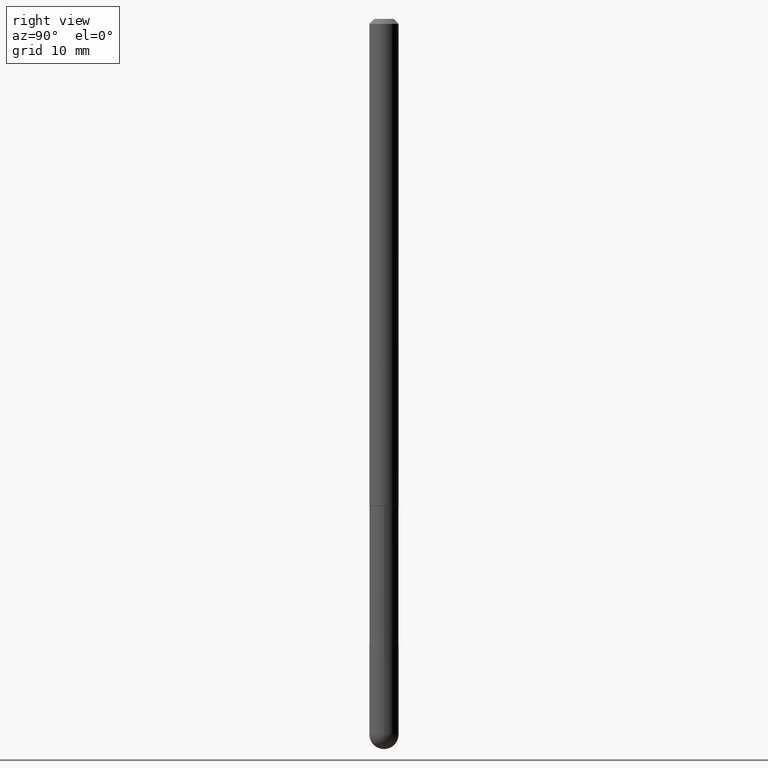
[diagram: clean part render]
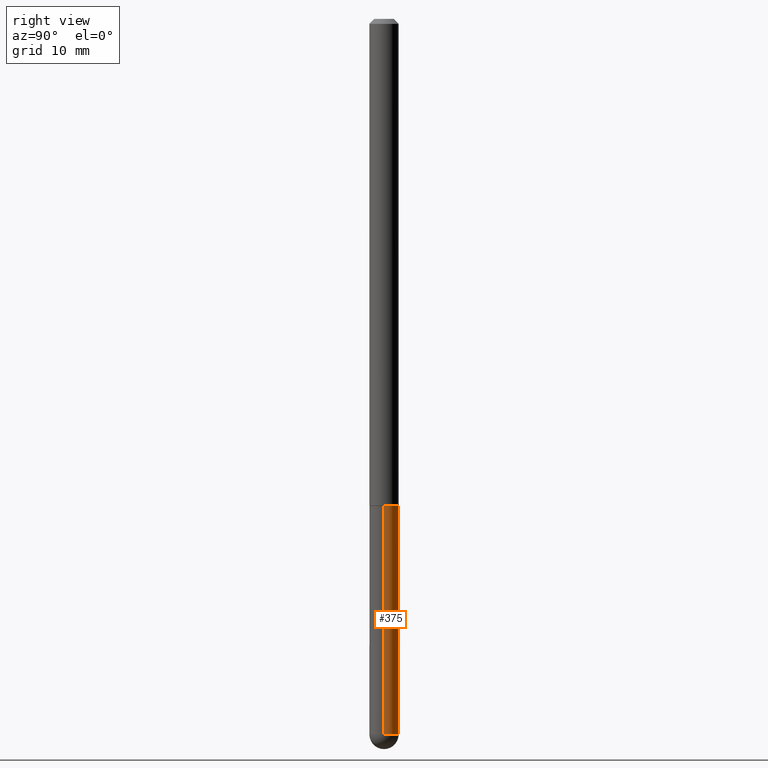
[diagram: same view with one face highlighted and labeled with its STEP entity id]
A machine part, right view. The second image highlights one B-rep face of the part: STEP entity #375.
In plain terms, the highlighted cylindrical surface (edge-blend (fillet) strip) has radius 1.4999 mm, axis along (-0, 0, 1).
Its self-contained STEP definition (entity closure, byte-faithful):
#8 = CARTESIAN_POINT ( 'NONE',  ( 0.05905000000000001914, -4.123439461173741806E-16, 2.879382386107500921E-30 ) ) ;
#12 = EDGE_CURVE ( 'NONE', #98, #257, #391, .T. ) ;
#15 = EDGE_LOOP ( 'NONE', ( #319, #223, #208, #174, #359 ) ) ;
#16 = CYLINDRICAL_SURFACE ( 'NONE', #264, 0.05905000000000001914 ) ;
#31 = DIRECTION ( 'NONE',  ( 1.000000000000000000, -6.982962677686266711E-15, 4.876176775795935793E-29 ) ) ;
#45 = LINE ( 'NONE', #295, #207 ) ;
#46 = DIRECTION ( 'NONE',  ( -2.445468806185136597E-29, 3.491481338843145583E-15, 1.000000000000000000 ) ) ;
#51 = AXIS2_PLACEMENT_3D ( 'NONE', #168, #307, #266 ) ;
#68 = CARTESIAN_POINT ( 'NONE',  ( 4.813905344975440714E-29, -6.872981015512730918E-15, -1.968499999999999694 ) ) ;
#76 = VERTEX_POINT ( 'NONE', #237 ) ;
#91 = CARTESIAN_POINT ( 'NONE',  ( 0.000000000000000000, 0.000000000000000000, 0.000000000000000000 ) ) ;
#98 = VERTEX_POINT ( 'NONE', #133 ) ;
#102 = CARTESIAN_POINT ( 'NONE',  ( 7.076575357898237682E-29, -1.010347412427735067E-14, -2.893749999999999822 ) ) ;
#113 = EDGE_CURVE ( 'NONE', #185, #260, #235, .T. ) ;
#133 = CARTESIAN_POINT ( 'NONE',  ( 0.05905000000000001914, -7.285324961630105839E-15, -1.968499999999999694 ) ) ;
#143 = EDGE_CURVE ( 'NONE', #76, #257, #45, .T. ) ;
#167 = LINE ( 'NONE', #8, #173 ) ;
#168 = CARTESIAN_POINT ( 'NONE',  ( 7.076575357898237682E-29, -1.010347412427735067E-14, -2.893749999999999822 ) ) ;
#173 = VECTOR ( 'NONE', #256, 39.37007874015748143 ) ;
#174 = ORIENTED_EDGE ( 'NONE', *, *, #288, .F. ) ;
#185 = VERTEX_POINT ( 'NONE', #320 ) ;
#189 = DIRECTION ( 'NONE',  ( -2.445468806185136597E-29, 3.491481338843145583E-15, 1.000000000000000000 ) ) ;
#207 = VECTOR ( 'NONE', #369, 39.37007874015748143 ) ;
#208 = ORIENTED_EDGE ( 'NONE', *, *, #12, .F. ) ;
#223 = ORIENTED_EDGE ( 'NONE', *, *, #143, .T. ) ;
#230 = CARTESIAN_POINT ( 'NONE',  ( 4.123439461174440441E-16, 0.05904999999998979815, -2.893749999999999822 ) ) ;
#235 = CIRCLE ( 'NONE', #350, 0.05905000000000001914 ) ;
#237 = CARTESIAN_POINT ( 'NONE',  ( -0.05905000000000001914, -8.068652084428701697E-15, -2.893749999999999822 ) ) ;
#256 = DIRECTION ( 'NONE',  ( -2.445468806185136877E-29, 3.491481338843145188E-15, 1.000000000000000000 ) ) ;
#257 = VERTEX_POINT ( 'NONE', #306 ) ;
#260 = VERTEX_POINT ( 'NONE', #230 ) ;
#263 = EDGE_CURVE ( 'NONE', #260, #76, #410, .T. ) ;
#264 = AXIS2_PLACEMENT_3D ( 'NONE', #91, #189, #31 ) ;
#266 = DIRECTION ( 'NONE',  ( 1.000000000000000000, -6.982962677686270655E-15, 0.000000000000000000 ) ) ;
#278 = FACE_OUTER_BOUND ( 'NONE', #15, .T. ) ;
#287 = AXIS2_PLACEMENT_3D ( 'NONE', #68, #46, #330 ) ;
#288 = EDGE_CURVE ( 'NONE', #185, #98, #167, .T. ) ;
#295 = CARTESIAN_POINT ( 'NONE',  ( -0.05905000000000001914, 4.195754854663392958E-16, -2.904631170795522943E-30 ) ) ;
#306 = CARTESIAN_POINT ( 'NONE',  ( -0.05905000000000001914, -8.068652084428701697E-15, -1.968499999999999694 ) ) ;
#307 = DIRECTION ( 'NONE',  ( -2.445468806185136597E-29, 3.491481338843145583E-15, 1.000000000000000000 ) ) ;
#319 = ORIENTED_EDGE ( 'NONE', *, *, #263, .T. ) ;
#320 = CARTESIAN_POINT ( 'NONE',  ( 0.05905000000000001914, -8.900571516012416899E-15, -2.893749999999999822 ) ) ;
#330 = DIRECTION ( 'NONE',  ( 1.000000000000000000, -6.982962677686270655E-15, 0.000000000000000000 ) ) ;
#350 = AXIS2_PLACEMENT_3D ( 'NONE', #102, #400, #371 ) ;
#359 = ORIENTED_EDGE ( 'NONE', *, *, #113, .T. ) ;
#369 = DIRECTION ( 'NONE',  ( -2.445468806185136877E-29, 3.491481338843145188E-15, 1.000000000000000000 ) ) ;
#371 = DIRECTION ( 'NONE',  ( 1.000000000000000000, -6.982962677686270655E-15, 0.000000000000000000 ) ) ;
#375 = ADVANCED_FACE ( 'NONE', ( #278 ), #16, .T. ) ;
#391 = CIRCLE ( 'NONE', #287, 0.05905000000000001914 ) ;
#400 = DIRECTION ( 'NONE',  ( -2.445468806185136597E-29, 3.491481338843145583E-15, 1.000000000000000000 ) ) ;
#410 = CIRCLE ( 'NONE', #51, 0.05905000000000001914 ) ;